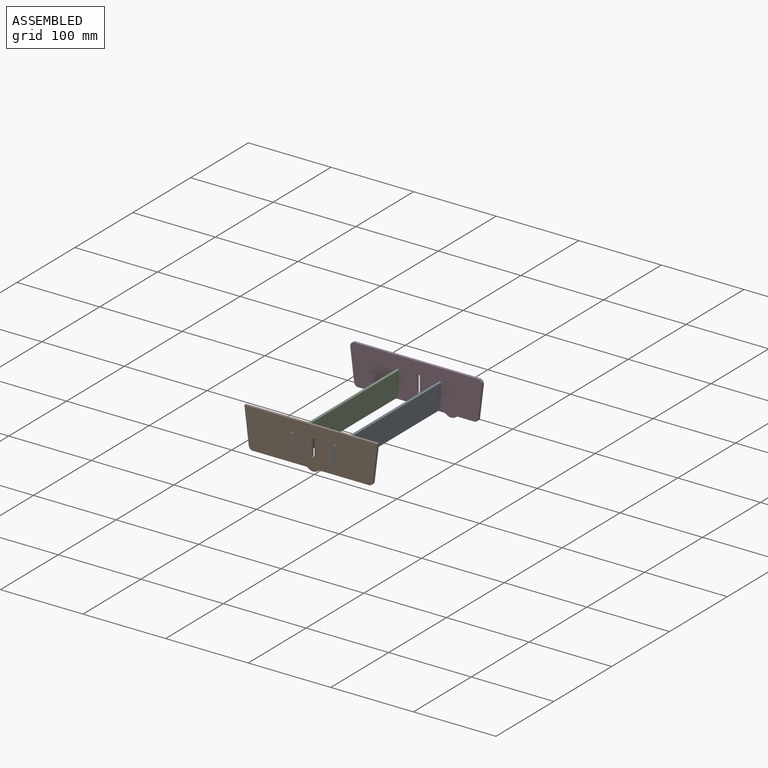
[diagram: assembled view]
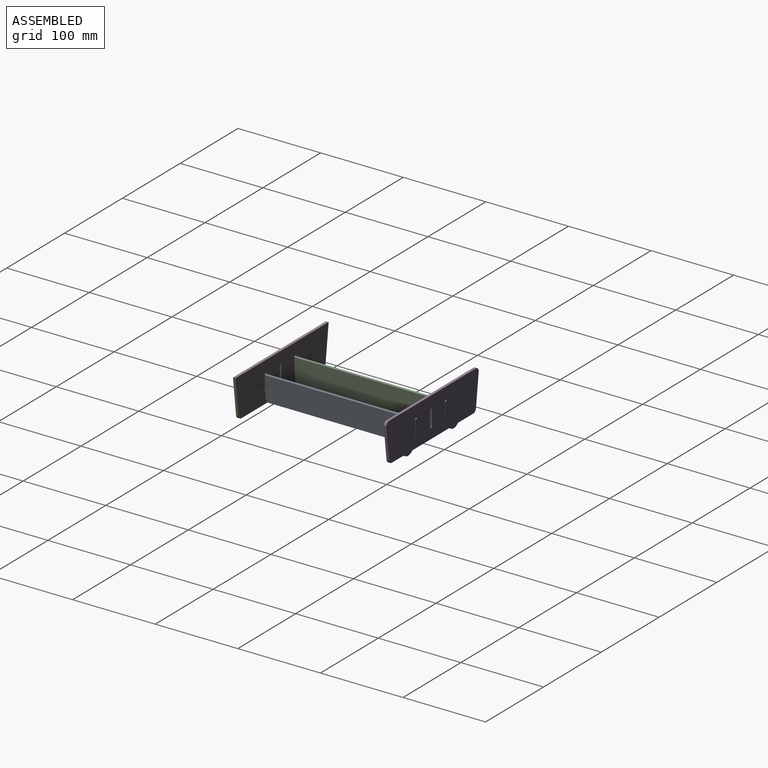
[diagram: assembled view, second angle]
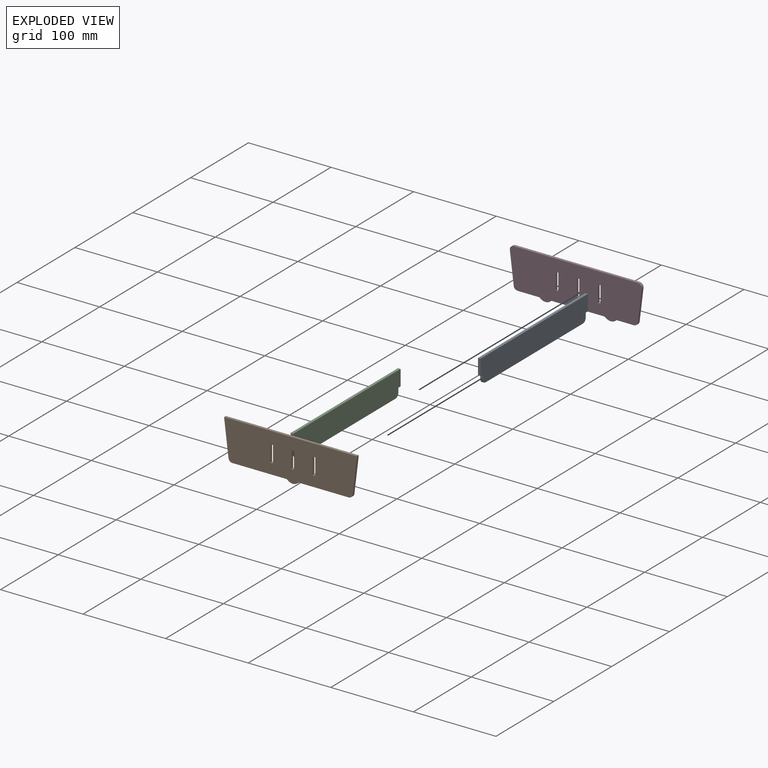
[diagram: exploded view]
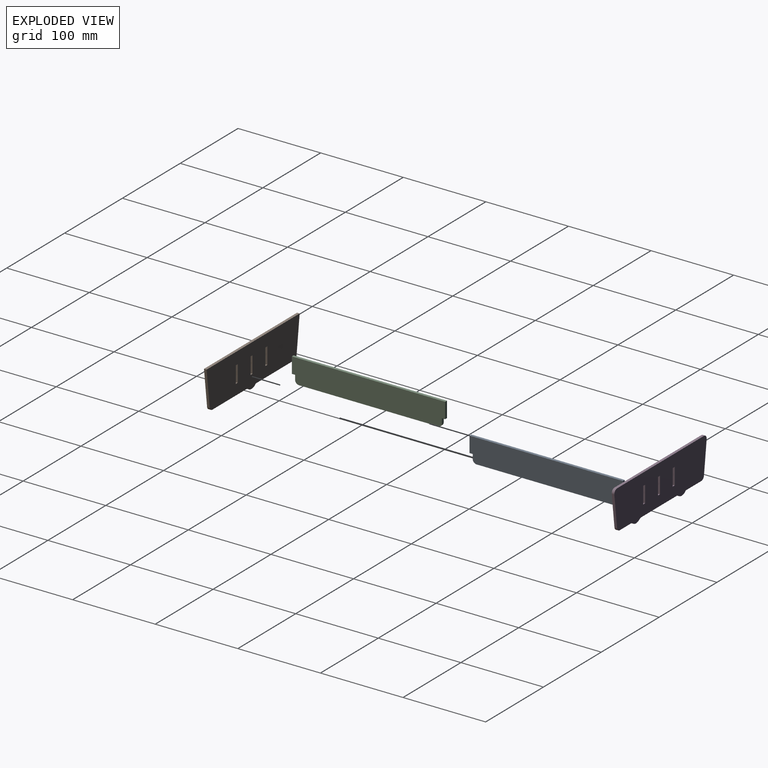
[diagram: exploded view, second angle]
ASSEMBLY  parts=4 mates=4
PART A: 12 faces, bbox 3.2x185.7x29.2 mm
  f0: plane 168.28x3.18mm, normal (0,0,-1), area 534.3mm2, adj f8,f9,f10,f11
  f1: plane 5.4x3.18mm, normal (0,1,0), area 17.1mm2, adj f2,f8,f9,f10
  f2: plane 3.94x3.18mm, normal (0,0,-1), area 12.5mm2, adj f1,f3,f8,f9
  f3: plane 19.05x3.18mm, normal (0,1,0), area 60.5mm2, adj f2,f4,f8,f9
  f4: plane 185.67x3.18mm, normal (0,0,1), area 589.5mm2, adj f3,f5,f8,f9
  f5: plane 19.05x3.18mm, normal (0,-1,0), area 60.5mm2, adj f4,f6,f8,f9
  f6: plane 3.94x3.18mm, normal (0,0,-1), area 12.5mm2, adj f5,f7,f8,f9
  f7: plane 5.4x3.18mm, normal (0,-1,0), area 17.1mm2, adj f6,f8,f9,f11
  f8: plane 185.67x29.21mm, normal (-1,0,0), area 5333.8mm2, adj f0,f1,f2,f3,f4,f5,f6,f7
  f9: plane 185.67x29.21mm, normal (1,0,0), area 5333.8mm2, adj f0,f1,f2,f3,f4,f5,f6,f7
  f10: cylinder r=4.76mm len=4.76mm, axis (-1,0,0), area 23.8mm2, adj f0,f1,f8,f9
  f11: cylinder r=4.76mm len=4.76mm, axis (1,0,0), area 23.8mm2, adj f0,f7,f8,f9
PART B: 22 faces, bbox 160.9x3.2x50.8 mm
  f0: plane 43.44x5.33mm, normal (0.99,0,-0.12), area 139mm2, adj f1,f18,f19,f21
  f1: plane 160.92x3.18mm, normal (0,0,1), area 510.9mm2, adj f0,f2,f18,f19
  f2: plane 43.44x5.33mm, normal (-0.99,0,-0.12), area 139mm2, adj f1,f18,f19,f20
  f3: plane 65.99x3.18mm, normal (0,0,-1), area 209.5mm2, adj f4,f18,f19,f20
  f4: cylinder r=9.53mm len=14.2mm, axis (0,1,0), area 50.9mm2, adj f3,f17,f18,f19
  f5: plane 20.32x3.18mm, normal (1,0,0), area 64.5mm2, adj f6,f14,f18,f19
  f6: plane 3.3x3.18mm, normal (0,0,-1), area 10.5mm2, adj f5,f7,f18,f19
  f7: plane 20.32x3.18mm, normal (-1,0,0), area 64.5mm2, adj f6,f14,f18,f19
  f8: plane 20.32x3.18mm, normal (1,0,0), area 64.5mm2, adj f9,f15,f18,f19
  f9: plane 3.3x3.18mm, normal (0,0,-1), area 10.5mm2, adj f8,f10,f18,f19
  f10: plane 20.32x3.18mm, normal (-1,0,0), area 64.5mm2, adj f9,f15,f18,f19
  f11: plane 20.32x3.18mm, normal (1,0,0), area 64.5mm2, adj f12,f16,f18,f19
  f12: plane 3.3x3.18mm, normal (0,0,-1), area 10.5mm2, adj f11,f13,f18,f19
  f13: plane 20.32x3.18mm, normal (-1,0,0), area 64.5mm2, adj f12,f16,f18,f19
  f14: plane 3.3x3.18mm, normal (0,0,1), area 10.5mm2, adj f5,f7,f18,f19
  f15: plane 3.3x3.18mm, normal (0,0,1), area 10.5mm2, adj f8,f10,f18,f19
  f16: plane 3.3x3.18mm, normal (0,0,1), area 10.5mm2, adj f11,f13,f18,f19
  f17: plane 60.61x3.18mm, normal (0,0,-1), area 192.4mm2, adj f4,f18,f19,f21
  f18: plane 160.92x50.8mm, normal (0,-1,0), area 7208mm2, adj f0,f1,f2,f3,f4,f5,f6,f7
  f19: plane 160.92x50.8mm, normal (0,1,0), area 7208mm2, adj f0,f1,f2,f3,f4,f5,f6,f7
  f20: cylinder r=4.76mm len=4.73mm, axis (0,1,0), area 21.9mm2, adj f2,f3,f18,f19
  f21: cylinder r=4.76mm len=4.73mm, axis (0,1,0), area 21.9mm2, adj f0,f17,f18,f19
PART C: same geometry as A
PART D: 27 faces, bbox 159.7x3.2x50.8 mm
  f0: cylinder r=9.53mm len=13.09mm, axis (0,1,0), area 46mm2, adj f1,f20,f21,f26
  f1: plane 21.1x3.18mm, normal (0,0,-1), area 67mm2, adj f0,f20,f21,f22
  f2: plane 38.1x4.68mm, normal (0.99,0,-0.12), area 121.9mm2, adj f20,f21,f22,f23
  f3: plane 150.15x3.18mm, normal (0,0,1), area 476.7mm2, adj f20,f21,f23,f24
  f4: plane 38.1x4.68mm, normal (-0.99,0,-0.12), area 121.9mm2, adj f20,f21,f24,f25
  f5: plane 26.48x3.18mm, normal (0,0,-1), area 84.1mm2, adj f6,f20,f21,f25
  f6: cylinder r=9.53mm len=14.2mm, axis (0,1,0), area 50.9mm2, adj f5,f19,f20,f21
  f7: plane 20.32x3.18mm, normal (1,0,0), area 64.5mm2, adj f8,f16,f20,f21
  f8: plane 3.3x3.18mm, normal (0,0,-1), area 10.5mm2, adj f7,f9,f20,f21
  f9: plane 20.32x3.18mm, normal (-1,0,0), area 64.5mm2, adj f8,f16,f20,f21
  f10: plane 20.32x3.18mm, normal (1,0,0), area 64.5mm2, adj f11,f17,f20,f21
  f11: plane 3.3x3.18mm, normal (0,0,-1), area 10.5mm2, adj f10,f12,f20,f21
  f12: plane 20.32x3.18mm, normal (-1,0,0), area 64.5mm2, adj f11,f17,f20,f21
  f13: plane 20.32x3.18mm, normal (1,0,0), area 64.5mm2, adj f14,f18,f20,f21
  f14: plane 3.3x3.18mm, normal (0,0,-1), area 10.5mm2, adj f13,f15,f20,f21
  f15: plane 20.32x3.18mm, normal (-1,0,0), area 64.5mm2, adj f14,f18,f20,f21
  f16: plane 3.3x3.18mm, normal (0,0,1), area 10.5mm2, adj f7,f9,f20,f21
  f17: plane 3.3x3.18mm, normal (0,0,1), area 10.5mm2, adj f10,f12,f20,f21
  f18: plane 3.3x3.18mm, normal (0,0,1), area 10.5mm2, adj f13,f15,f20,f21
  f19: plane 62.94x3.18mm, normal (0,0,-1), area 199.8mm2, adj f6,f20,f21,f26
  f20: plane 159.68x50.8mm, normal (0,-1,0), area 7226.7mm2, adj f0,f1,f2,f3,f4,f5,f6,f7
  f21: plane 159.68x50.8mm, normal (0,1,0), area 7226.7mm2, adj f0,f1,f2,f3,f4,f5,f6,f7
  f22: cylinder r=4.76mm len=4.73mm, axis (0,1,0), area 21.9mm2, adj f1,f2,f20,f21
  f23: cylinder r=4.76mm len=5.34mm, axis (0,1,0), area 25.6mm2, adj f2,f3,f20,f21
  f24: cylinder r=4.76mm len=5.34mm, axis (0,1,0), area 25.6mm2, adj f3,f4,f20,f21
  f25: cylinder r=4.76mm len=4.73mm, axis (0,1,0), area 21.9mm2, adj f4,f5,f20,f21
  f26: cylinder r=4.76mm len=3.18mm, axis (0,1,0), area 10.3mm2, adj f0,f19,f20,f21
PLACE A t=(26.85,91.08,-28.16)mm
PLACE B t=(-0.33,1.42,-19.86)mm fixed
PLACE C t=(-24.33,91.08,-28.16)mm
PLACE D t=(-0.33,183.54,-19.86)mm
MATE planar B.f18 <-> A.f5  axis (0,-1,0) through (6.77,-1.75,-19.86)mm
MATE planar C.f3 <-> D.f21  axis (0,1,0) through (-24.33,183.92,11.89)mm
MATE fastened B.f18 <-> C.f5  axis (0,-1,0) through (-25.92,-1.75,-7.16)mm
MATE fastened A.f2 <-> D.f17  axis (0,0,-1) through (25.26,181.95,-7.16)mm
